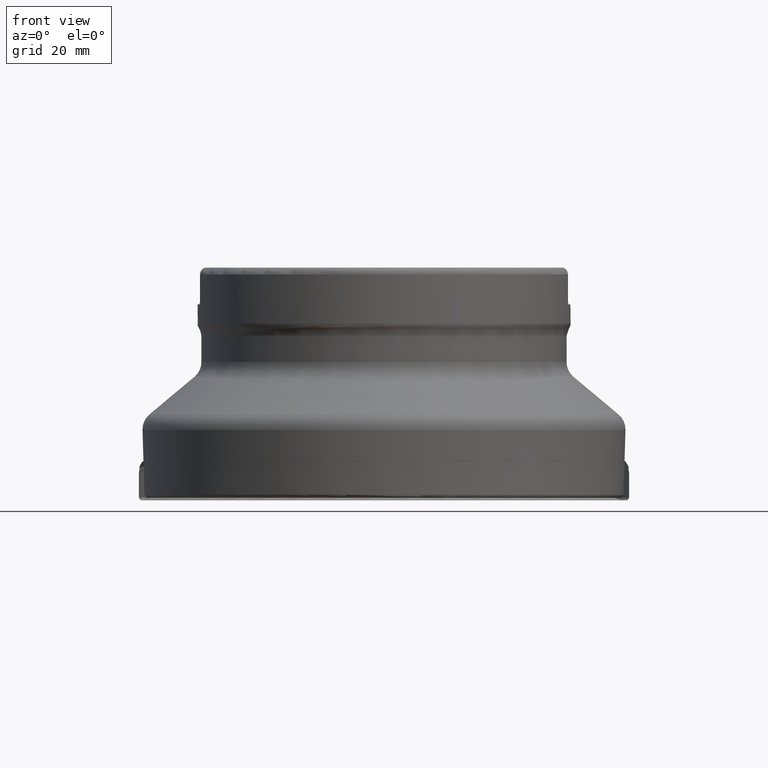
[diagram: clean part render]
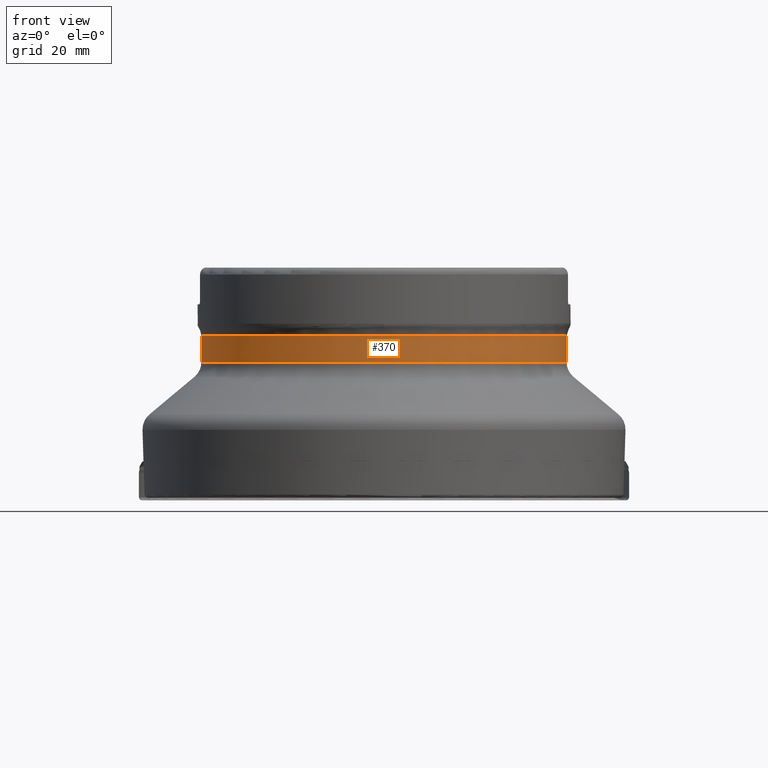
[diagram: same view with one face highlighted and labeled with its STEP entity id]
A machine part, front view. The second image highlights one B-rep face of the part: STEP entity #370.
In plain terms, the highlighted cylindrical surface (bore or boss wall) has radius 47.35 mm, axis along (0, -0, -1).
Its self-contained STEP definition (entity closure, byte-faithful):
#159=CYLINDRICAL_SURFACE('',#1221,47.35);
#170=FACE_BOUND('',#484,.T.);
#171=FACE_BOUND('',#485,.T.);
#370=ADVANCED_FACE('',(#170,#171),#159,.T.);
#484=EDGE_LOOP('',(#724));
#485=EDGE_LOOP('',(#725));
#615=CIRCLE('',#1219,47.35);
#616=CIRCLE('',#1220,47.35);
#724=ORIENTED_EDGE('',*,*,#1049,.T.);
#725=ORIENTED_EDGE('',*,*,#1050,.T.);
#942=VERTEX_POINT('',#2074);
#943=VERTEX_POINT('',#2076);
#1049=EDGE_CURVE('',#942,#942,#615,.T.);
#1050=EDGE_CURVE('',#943,#943,#616,.T.);
#1219=AXIS2_PLACEMENT_3D('',#2073,#1380,#1381);
#1220=AXIS2_PLACEMENT_3D('',#2075,#1382,#1383);
#1221=AXIS2_PLACEMENT_3D('',#2077,#1384,#1385);
#1380=DIRECTION('',(0.,1.17145536458252E-15,1.));
#1381=DIRECTION('',(0.,1.,-1.17235799854821E-15));
#1382=DIRECTION('',(0.,-1.17145536458252E-15,-1.));
#1383=DIRECTION('',(0.,1.,-1.17235799854821E-15));
#1384=DIRECTION('',(0.,-1.17145536458252E-15,-1.));
#1385=DIRECTION('',(0.,1.,-1.17145536458252E-15));
#2073=CARTESIAN_POINT('',(0.,4.20086752668814E-14,35.8602440493772));
#2074=CARTESIAN_POINT('',(0.,47.3500000000001,35.8602440493771));
#2075=CARTESIAN_POINT('',(0.,5.00107760604741E-14,42.6911494645778));
#2076=CARTESIAN_POINT('',(0.,47.3500000000001,42.6911494645778));
#2077=CARTESIAN_POINT('',(0.,0.,0.));